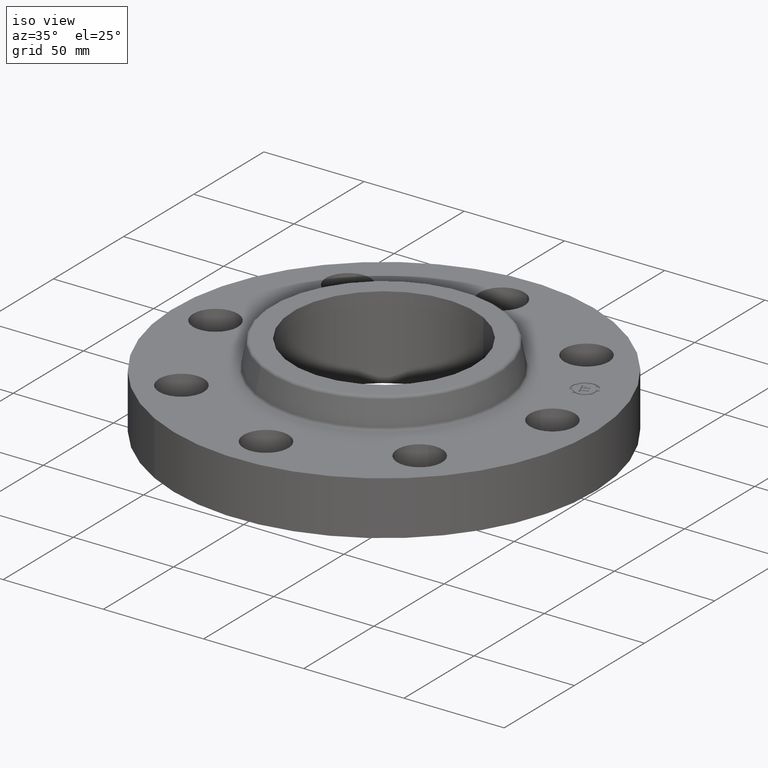
[diagram: clean part render]
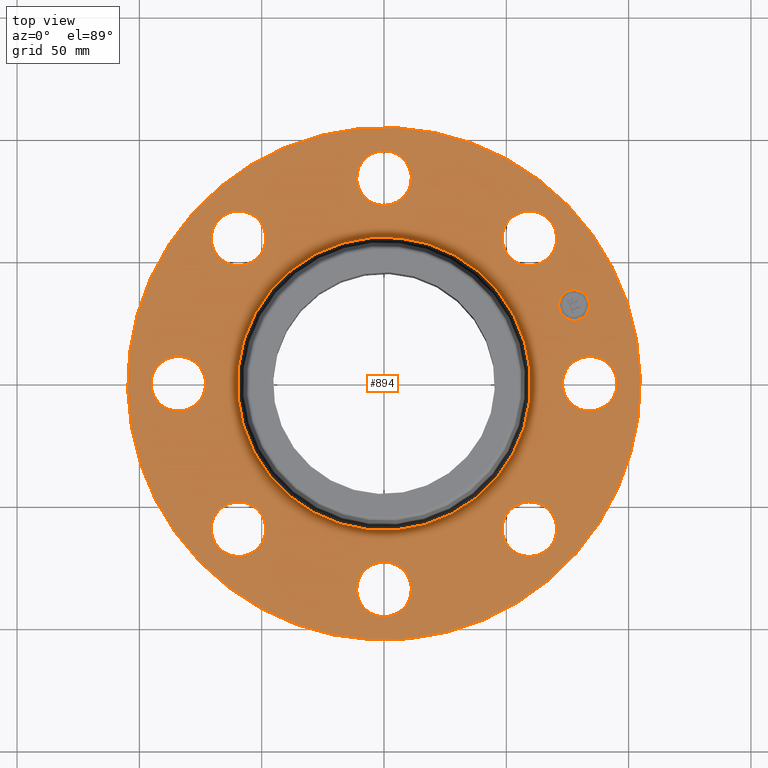
[diagram: tour spotlight — one face highlighted and labeled with its STEP entity id]
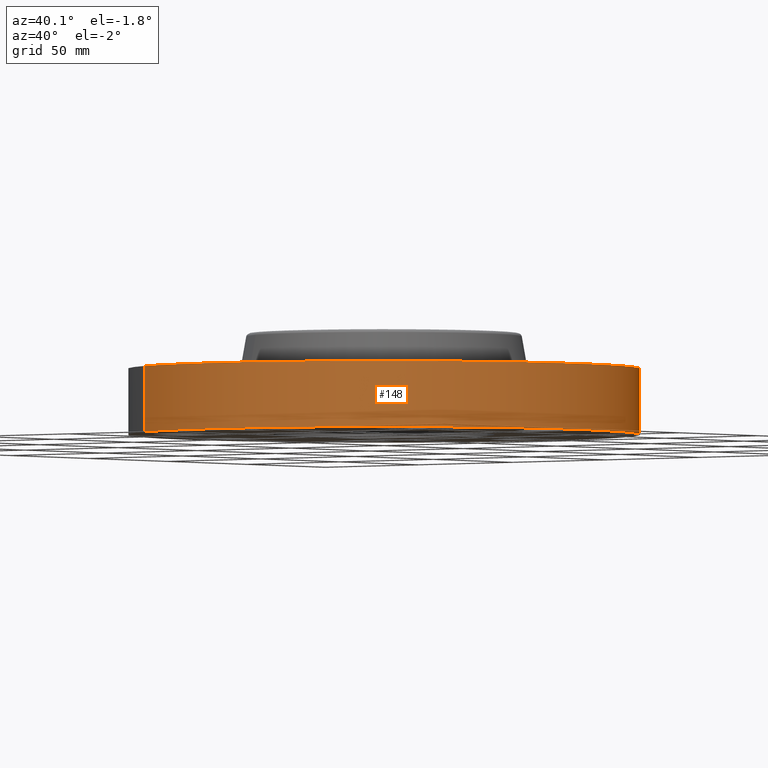
[diagram: tour spotlight — one face highlighted and labeled with its STEP entity id]
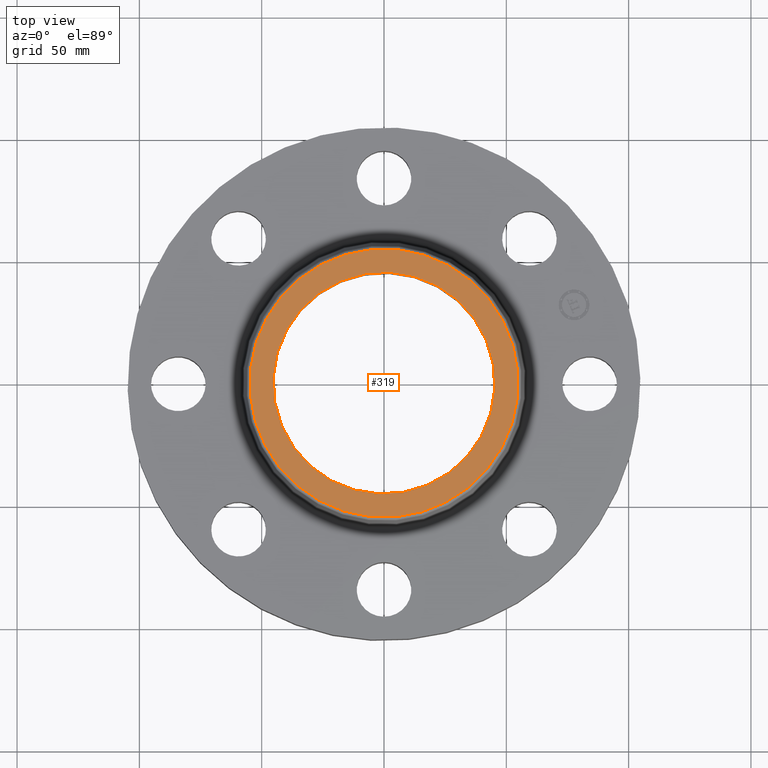
[diagram: tour spotlight — one face highlighted and labeled with its STEP entity id]
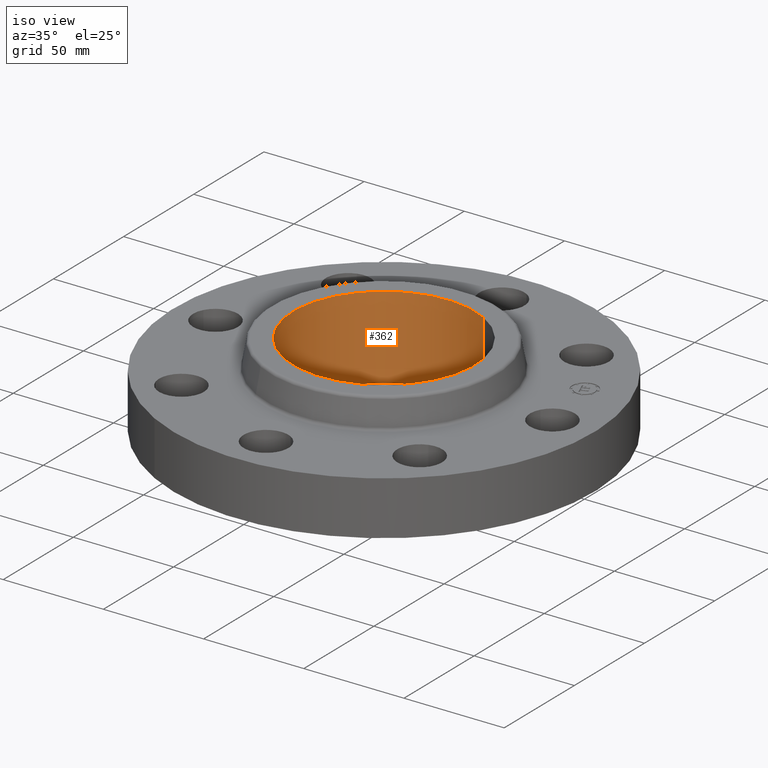
[diagram: tour spotlight — one face highlighted and labeled with its STEP entity id]
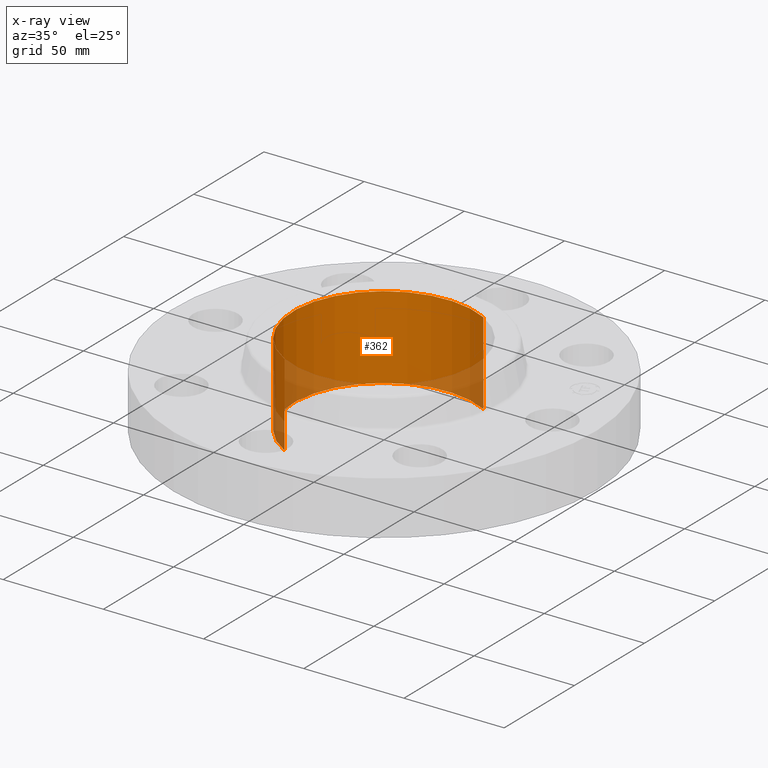
[diagram: x-ray of the same camera — body ghosted, this tour face saturated]
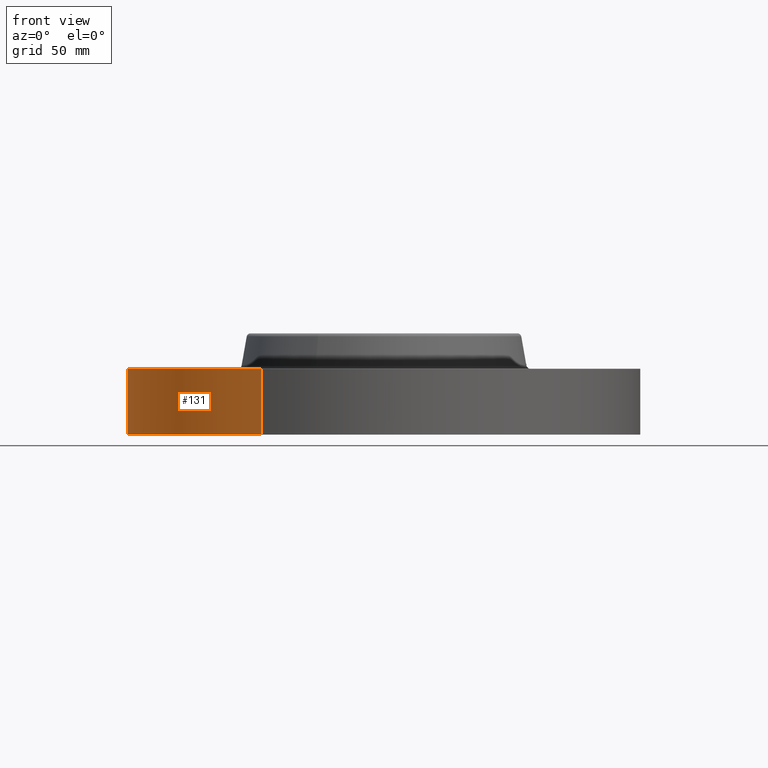
[diagram: tour spotlight — one face highlighted and labeled with its STEP entity id]
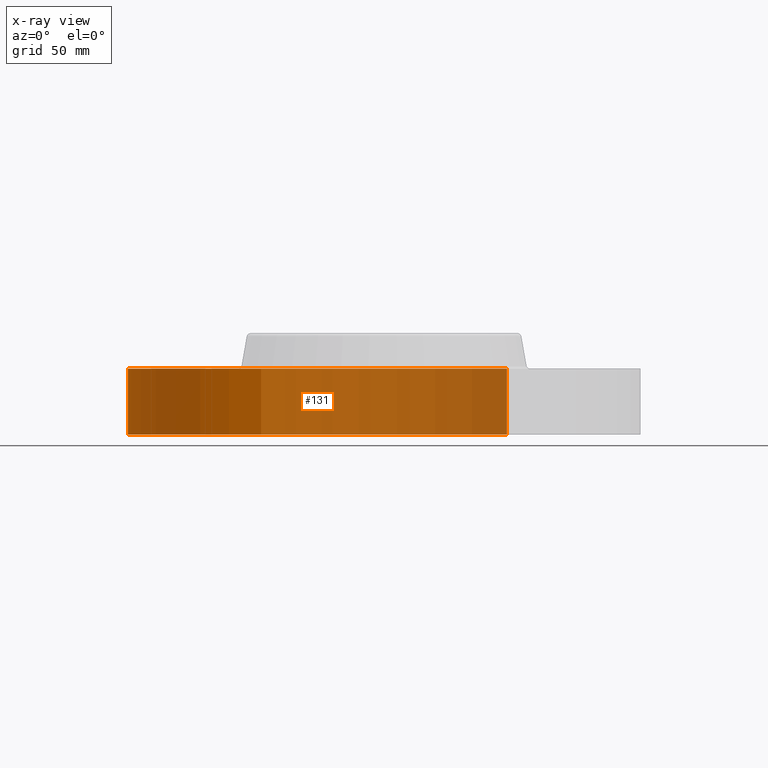
[diagram: x-ray of the same camera — body ghosted, this tour face saturated]
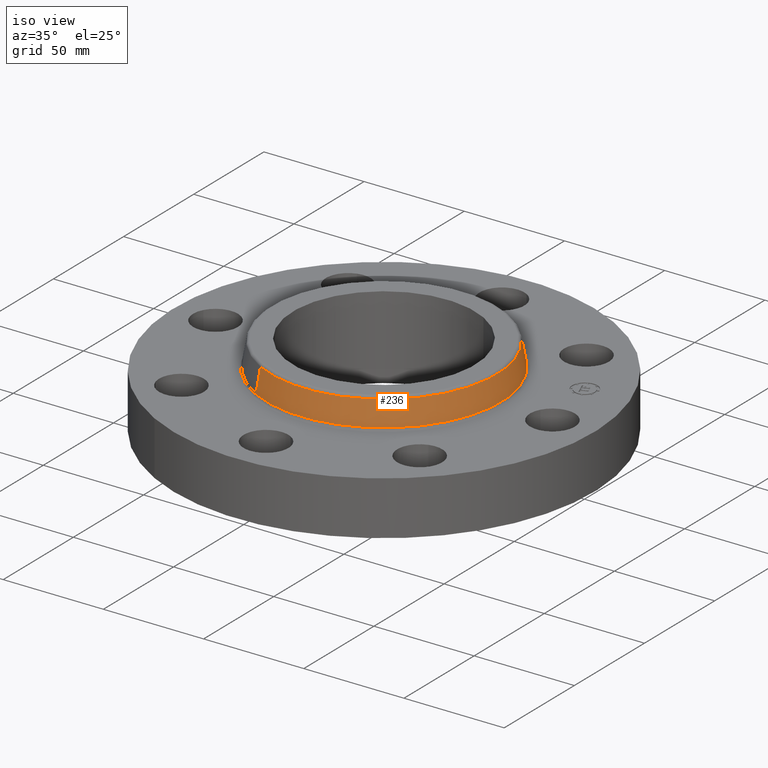
[diagram: tour spotlight — one face highlighted and labeled with its STEP entity id]
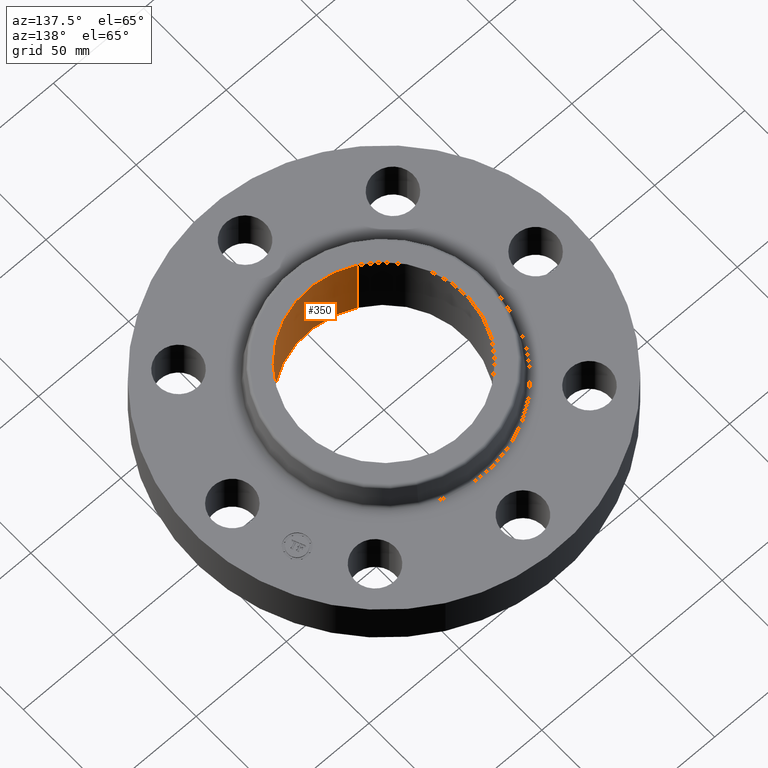
[diagram: tour spotlight — one face highlighted and labeled with its STEP entity id]
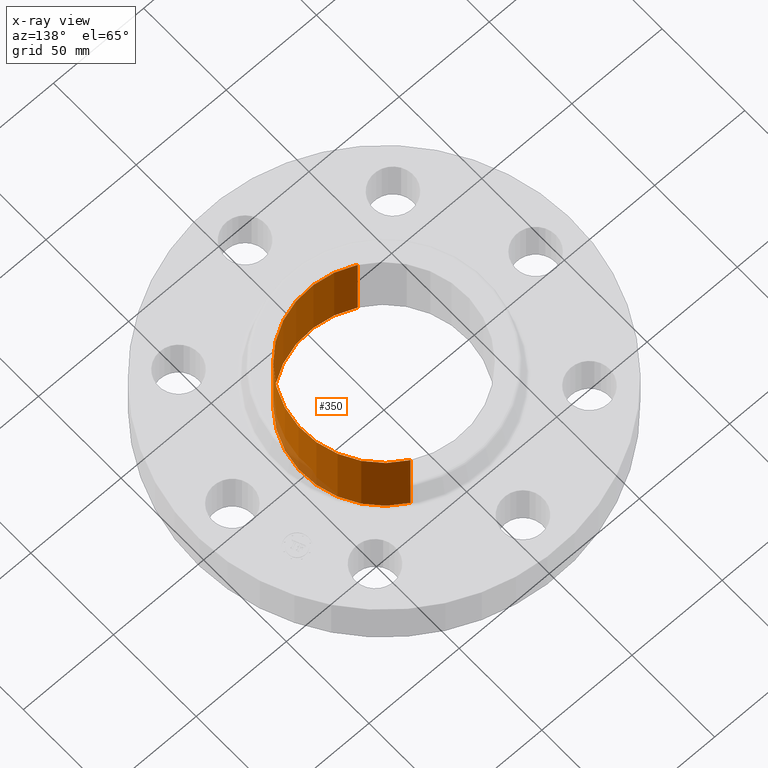
[diagram: x-ray of the same camera — body ghosted, this tour face saturated]
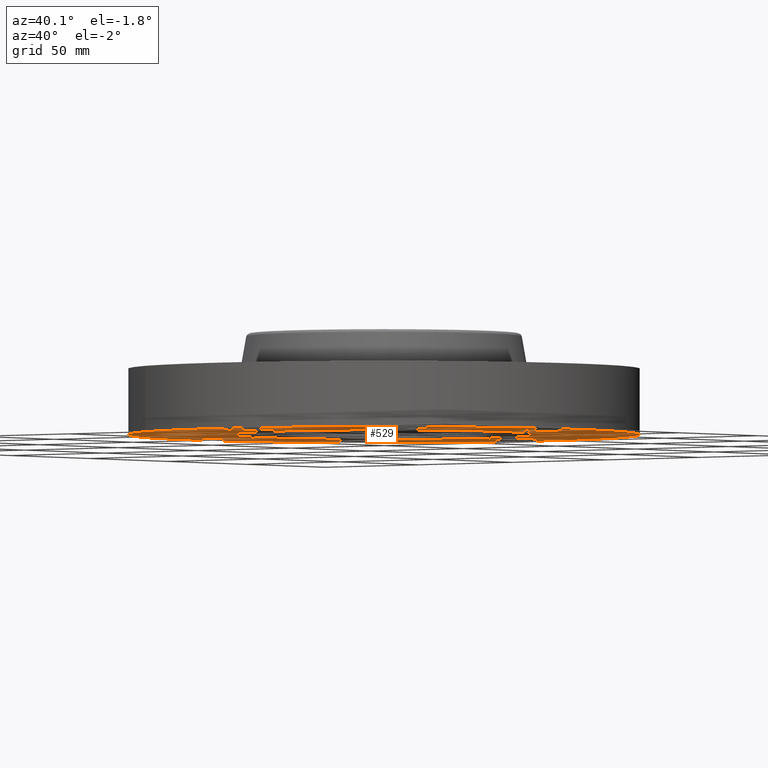
[diagram: tour spotlight — one face highlighted and labeled with its STEP entity id]
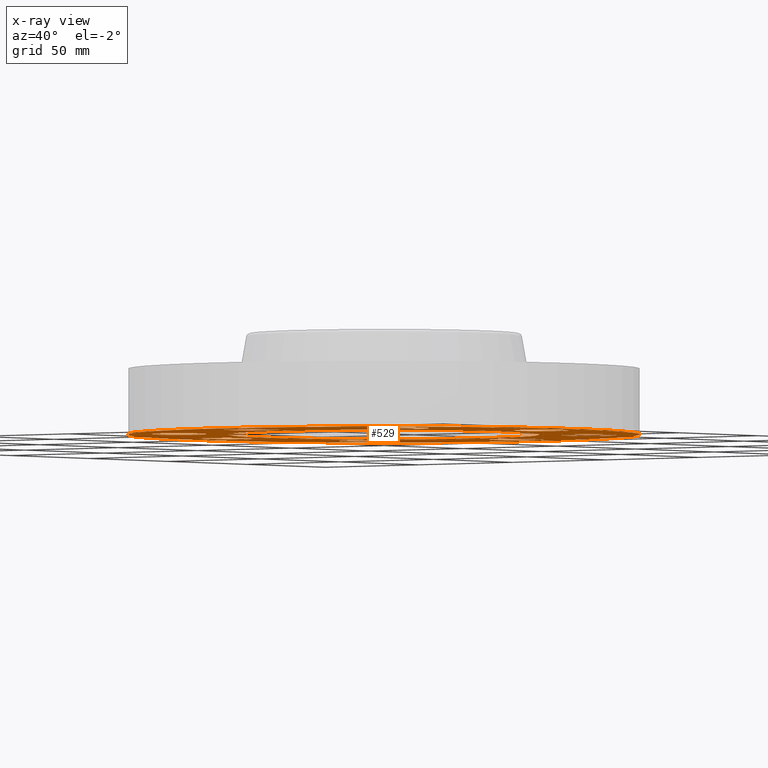
[diagram: x-ray of the same camera — body ghosted, this tour face saturated]
A machine part: a face-by-face anatomy tour. The part has 415 B-rep faces; the first image is the clean iso view, then the 8 largest visible faces are spotlighted one at a time (largest first), each with its STEP entity span.

Face 1 — top view, entity #894. In plain terms, the highlighted planar face has unit normal (0, 0, -1).
Definition (entity closure, byte-faithful):
#65=AXIS2_PLACEMENT_3D('Circle Axis2P3D',#63,#64,$) ;
#82=AXIS2_PLACEMENT_3D('Circle Axis2P3D',#80,#81,$) ;
#115=AXIS2_PLACEMENT_3D('Circle Axis2P3D',#113,#114,$) ;
#139=AXIS2_PLACEMENT_3D('Circle Axis2P3D',#137,#138,$) ;
#156=AXIS2_PLACEMENT_3D('Circle Axis2P3D',#154,#155,$) ;
#191=AXIS2_PLACEMENT_3D('Circle Axis2P3D',#189,#190,$) ;
#551=AXIS2_PLACEMENT_3D('Circle Axis2P3D',#549,#550,$) ;
#563=AXIS2_PLACEMENT_3D('Circle Axis2P3D',#561,#562,$) ;
#594=AXIS2_PLACEMENT_3D('Circle Axis2P3D',#592,#593,$) ;
#606=AXIS2_PLACEMENT_3D('Circle Axis2P3D',#604,#605,$) ;
#637=AXIS2_PLACEMENT_3D('Circle Axis2P3D',#635,#636,$) ;
#649=AXIS2_PLACEMENT_3D('Circle Axis2P3D',#647,#648,$) ;
#680=AXIS2_PLACEMENT_3D('Circle Axis2P3D',#678,#679,$) ;
#692=AXIS2_PLACEMENT_3D('Circle Axis2P3D',#690,#691,$) ;
#723=AXIS2_PLACEMENT_3D('Circle Axis2P3D',#721,#722,$) ;
#735=AXIS2_PLACEMENT_3D('Circle Axis2P3D',#733,#734,$) ;
#766=AXIS2_PLACEMENT_3D('Circle Axis2P3D',#764,#765,$) ;
#778=AXIS2_PLACEMENT_3D('Circle Axis2P3D',#776,#777,$) ;
#809=AXIS2_PLACEMENT_3D('Circle Axis2P3D',#807,#808,$) ;
#821=AXIS2_PLACEMENT_3D('Circle Axis2P3D',#819,#820,$) ;
#834=AXIS2_PLACEMENT_3D('Plane Axis2P3D',#831,#832,#833) ;
#878=AXIS2_PLACEMENT_3D('Circle Axis2P3D',#876,#877,$) ;
#887=AXIS2_PLACEMENT_3D('Circle Axis2P3D',#885,#886,$) ;
#46=CARTESIAN_POINT('Vertex',(2.92386367278,0.210947236987,1.06)) ;
#60=CARTESIAN_POINT('Vertex',(3.69613632725,-0.210947236987,1.06)) ;
#63=CARTESIAN_POINT('Axis2P3D Location',(3.31000000001,0.,1.06)) ;
#80=CARTESIAN_POINT('Axis2P3D Location',(3.31000000001,0.,1.06)) ;
#110=CARTESIAN_POINT('Vertex',(-1.97763034675,-3.62002806781,1.06)) ;
#113=CARTESIAN_POINT('Axis2P3D Location',(0.,0.,1.06)) ;
#117=CARTESIAN_POINT('Vertex',(1.97763034675,3.62002806781,1.06)) ;
#137=CARTESIAN_POINT('Axis2P3D Location',(0.,0.,1.06)) ;
#154=CARTESIAN_POINT('Axis2P3D Location',(0.,0.,1.06)) ;
#158=CARTESIAN_POINT('Vertex',(1.13161014174,2.07139847022,1.06)) ;
#160=CARTESIAN_POINT('Vertex',(-1.13161014174,-2.07139847022,1.06)) ;
#189=CARTESIAN_POINT('Axis2P3D Location',(0.,0.,1.06)) ;
#539=CARTESIAN_POINT('Vertex',(-2.21664605203,1.91832160854,1.06)) ;
#546=CARTESIAN_POINT('Vertex',(-2.46440083944,2.76272528293,1.06)) ;
#549=CARTESIAN_POINT('Axis2P3D Location',(-2.34052344574,2.34052344574,1.06)) ;
#561=CARTESIAN_POINT('Axis2P3D Location',(-2.34052344574,2.34052344574,1.06)) ;
#582=CARTESIAN_POINT('Vertex',(0.210947236987,-2.92386367278,1.06)) ;
#589=CARTESIAN_POINT('Vertex',(-0.210947236987,-3.69613632725,1.06)) ;
#592=CARTESIAN_POINT('Axis2P3D Location',(-3.56803423843E-016,-3.31000000001,1.06)) ;
#604=CARTESIAN_POINT('Axis2P3D Location',(-3.56803423843E-016,-3.31000000001,1.06)) ;
#625=CARTESIAN_POINT('Vertex',(-0.210947236987,2.92386367278,1.06)) ;
#632=CARTESIAN_POINT('Vertex',(0.210947236987,3.69613632725,1.06)) ;
#635=CARTESIAN_POINT('Axis2P3D Location',(-6.08037135779E-016,3.31000000001,1.06)) ;
#647=CARTESIAN_POINT('Axis2P3D Location',(-6.08037135779E-016,3.31000000001,1.06)) ;
#668=CARTESIAN_POINT('Vertex',(-1.91832160854,-2.21664605203,1.06)) ;
#675=CARTESIAN_POINT('Vertex',(-2.76272528293,-2.46440083944,1.06)) ;
#678=CARTESIAN_POINT('Axis2P3D Location',(-2.34052344574,-2.34052344574,1.06)) ;
#690=CARTESIAN_POINT('Axis2P3D Location',(-2.34052344574,-2.34052344574,1.06)) ;
#711=CARTESIAN_POINT('Vertex',(1.91832160854,2.21664605203,1.06)) ;
#718=CARTESIAN_POINT('Vertex',(2.76272528293,2.46440083944,1.06)) ;
#721=CARTESIAN_POINT('Axis2P3D Location',(2.34052344574,2.34052344574,1.06)) ;
#733=CARTESIAN_POINT('Axis2P3D Location',(2.34052344574,2.34052344574,1.06)) ;
#754=CARTESIAN_POINT('Vertex',(-2.92386367278,-0.210947236987,1.06)) ;
#761=CARTESIAN_POINT('Vertex',(-3.69613632725,0.210947236987,1.06)) ;
#764=CARTESIAN_POINT('Axis2P3D Location',(-3.31000000001,-4.05358090519E-016,1.06)) ;
#776=CARTESIAN_POINT('Axis2P3D Location',(-3.31000000001,-4.05358090519E-016,1.06)) ;
#797=CARTESIAN_POINT('Vertex',(2.21664605203,-1.91832160854,1.06)) ;
#804=CARTESIAN_POINT('Vertex',(2.46440083944,-2.76272528293,1.06)) ;
#807=CARTESIAN_POINT('Axis2P3D Location',(2.34052344574,-2.34052344574,1.06)) ;
#819=CARTESIAN_POINT('Axis2P3D Location',(2.34052344574,-2.34052344574,1.06)) ;
#831=CARTESIAN_POINT('Axis2P3D Location',(0.,4.12500000002,1.06)) ;
#876=CARTESIAN_POINT('Axis2P3D Location',(3.05804125262,1.26668216113,1.06)) ;
#880=CARTESIAN_POINT('Vertex',(2.96332710311,1.49534234543,1.06)) ;
#882=CARTESIAN_POINT('Vertex',(3.15275540214,1.03802197684,1.06)) ;
#885=CARTESIAN_POINT('Axis2P3D Location',(3.05804125262,1.26668216113,1.06)) ;
#64=DIRECTION('Axis2P3D Direction',(0.,-0.,-0.0393700787402)) ;
#81=DIRECTION('Axis2P3D Direction',(0.,-0.,-0.0393700787402)) ;
#114=DIRECTION('Axis2P3D Direction',(0.,0.,-0.0393700787402)) ;
#138=DIRECTION('Axis2P3D Direction',(0.,0.,-0.0393700787402)) ;
#155=DIRECTION('Axis2P3D Direction',(0.,0.,-0.0393700787402)) ;
#190=DIRECTION('Axis2P3D Direction',(0.,0.,-0.0393700787402)) ;
#550=DIRECTION('Axis2P3D Direction',(0.,0.,-0.0393700787402)) ;
#562=DIRECTION('Axis2P3D Direction',(0.,0.,-0.0393700787402)) ;
#593=DIRECTION('Axis2P3D Direction',(0.,-0.,-0.0393700787402)) ;
#605=DIRECTION('Axis2P3D Direction',(0.,-0.,-0.0393700787402)) ;
#636=DIRECTION('Axis2P3D Direction',(0.,0.,-0.0393700787402)) ;
#648=DIRECTION('Axis2P3D Direction',(0.,0.,-0.0393700787402)) ;
#679=DIRECTION('Axis2P3D Direction',(-0.,0.,-0.0393700787402)) ;
#691=DIRECTION('Axis2P3D Direction',(-0.,0.,-0.0393700787402)) ;
#722=DIRECTION('Axis2P3D Direction',(0.,0.,-0.0393700787402)) ;
#734=DIRECTION('Axis2P3D Direction',(0.,0.,-0.0393700787402)) ;
#765=DIRECTION('Axis2P3D Direction',(-0.,0.,-0.0393700787402)) ;
#777=DIRECTION('Axis2P3D Direction',(-0.,0.,-0.0393700787402)) ;
#808=DIRECTION('Axis2P3D Direction',(0.,-0.,-0.0393700787402)) ;
#820=DIRECTION('Axis2P3D Direction',(0.,-0.,-0.0393700787402)) ;
#832=DIRECTION('Axis2P3D Direction',(0.,0.,-0.0393700787402)) ;
#833=DIRECTION('Axis2P3D XDirection',(0.0393700787402,0.,0.)) ;
#877=DIRECTION('Axis2P3D Direction',(0.,0.,-0.0393700787402)) ;
#886=DIRECTION('Axis2P3D Direction',(0.,0.,-0.0393700787402)) ;
#837=ORIENTED_EDGE('',*,*,#141,.F.) ;
#838=ORIENTED_EDGE('',*,*,#119,.F.) ;
#841=ORIENTED_EDGE('',*,*,#67,.T.) ;
#842=ORIENTED_EDGE('',*,*,#84,.T.) ;
#845=ORIENTED_EDGE('',*,*,#193,.T.) ;
#846=ORIENTED_EDGE('',*,*,#162,.T.) ;
#849=ORIENTED_EDGE('',*,*,#823,.T.) ;
#850=ORIENTED_EDGE('',*,*,#811,.T.) ;
#853=ORIENTED_EDGE('',*,*,#608,.T.) ;
#854=ORIENTED_EDGE('',*,*,#596,.T.) ;
#857=ORIENTED_EDGE('',*,*,#694,.T.) ;
#858=ORIENTED_EDGE('',*,*,#682,.T.) ;
#861=ORIENTED_EDGE('',*,*,#780,.T.) ;
#862=ORIENTED_EDGE('',*,*,#768,.T.) ;
#865=ORIENTED_EDGE('',*,*,#565,.T.) ;
#866=ORIENTED_EDGE('',*,*,#553,.T.) ;
#869=ORIENTED_EDGE('',*,*,#651,.T.) ;
#870=ORIENTED_EDGE('',*,*,#639,.T.) ;
#873=ORIENTED_EDGE('',*,*,#737,.T.) ;
#874=ORIENTED_EDGE('',*,*,#725,.T.) ;
#891=ORIENTED_EDGE('',*,*,#884,.T.) ;
#892=ORIENTED_EDGE('',*,*,#889,.T.) ;
#843=FACE_BOUND('',#840,.T.) ;
#847=FACE_BOUND('',#844,.T.) ;
#851=FACE_BOUND('',#848,.T.) ;
#855=FACE_BOUND('',#852,.T.) ;
#859=FACE_BOUND('',#856,.T.) ;
#863=FACE_BOUND('',#860,.T.) ;
#867=FACE_BOUND('',#864,.T.) ;
#871=FACE_BOUND('',#868,.T.) ;
#875=FACE_BOUND('',#872,.T.) ;
#893=FACE_BOUND('',#890,.T.) ;
#894=ADVANCED_FACE('PartBody',(#839,#843,#847,#851,#855,#859,#863,#867,#871,#875,#893),#835,.F.) ;
#66=CIRCLE('generated circle',#65,0.440000000002) ;
#83=CIRCLE('generated circle',#82,0.440000000002) ;
#116=CIRCLE('generated circle',#115,4.12500000002) ;
#140=CIRCLE('generated circle',#139,4.12500000002) ;
#157=CIRCLE('generated circle',#156,2.36034597788) ;
#192=CIRCLE('generated circle',#191,2.36034597788) ;
#552=CIRCLE('generated circle',#551,0.440000000002) ;
#564=CIRCLE('generated circle',#563,0.440000000002) ;
#595=CIRCLE('generated circle',#594,0.440000000002) ;
#607=CIRCLE('generated circle',#606,0.440000000002) ;
#638=CIRCLE('generated circle',#637,0.440000000002) ;
#650=CIRCLE('generated circle',#649,0.440000000002) ;
#681=CIRCLE('generated circle',#680,0.440000000002) ;
#693=CIRCLE('generated circle',#692,0.440000000002) ;
#724=CIRCLE('generated circle',#723,0.440000000002) ;
#736=CIRCLE('generated circle',#735,0.440000000002) ;
#767=CIRCLE('generated circle',#766,0.440000000002) ;
#779=CIRCLE('generated circle',#778,0.440000000002) ;
#810=CIRCLE('generated circle',#809,0.440000000002) ;
#822=CIRCLE('generated circle',#821,0.440000000002) ;
#879=CIRCLE('generated circle',#878,0.247500000001) ;
#888=CIRCLE('generated circle',#887,0.247500000001) ;
#67=EDGE_CURVE('',#47,#61,#66,.T.) ;
#84=EDGE_CURVE('',#61,#47,#83,.T.) ;
#119=EDGE_CURVE('',#111,#118,#116,.T.) ;
#141=EDGE_CURVE('',#118,#111,#140,.T.) ;
#162=EDGE_CURVE('',#159,#161,#157,.T.) ;
#193=EDGE_CURVE('',#161,#159,#192,.T.) ;
#553=EDGE_CURVE('',#540,#547,#552,.T.) ;
#565=EDGE_CURVE('',#547,#540,#564,.T.) ;
#596=EDGE_CURVE('',#583,#590,#595,.T.) ;
#608=EDGE_CURVE('',#590,#583,#607,.T.) ;
#639=EDGE_CURVE('',#626,#633,#638,.T.) ;
#651=EDGE_CURVE('',#633,#626,#650,.T.) ;
#682=EDGE_CURVE('',#669,#676,#681,.T.) ;
#694=EDGE_CURVE('',#676,#669,#693,.T.) ;
#725=EDGE_CURVE('',#712,#719,#724,.T.) ;
#737=EDGE_CURVE('',#719,#712,#736,.T.) ;
#768=EDGE_CURVE('',#755,#762,#767,.T.) ;
#780=EDGE_CURVE('',#762,#755,#779,.T.) ;
#811=EDGE_CURVE('',#798,#805,#810,.T.) ;
#823=EDGE_CURVE('',#805,#798,#822,.T.) ;
#884=EDGE_CURVE('',#881,#883,#879,.T.) ;
#889=EDGE_CURVE('',#883,#881,#888,.T.) ;
#836=EDGE_LOOP('',(#837,#838)) ;
#840=EDGE_LOOP('',(#841,#842)) ;
#844=EDGE_LOOP('',(#845,#846)) ;
#848=EDGE_LOOP('',(#849,#850)) ;
#852=EDGE_LOOP('',(#853,#854)) ;
#856=EDGE_LOOP('',(#857,#858)) ;
#860=EDGE_LOOP('',(#861,#862)) ;
#864=EDGE_LOOP('',(#865,#866)) ;
#868=EDGE_LOOP('',(#869,#870)) ;
#872=EDGE_LOOP('',(#873,#874)) ;
#890=EDGE_LOOP('',(#891,#892)) ;
#839=FACE_OUTER_BOUND('',#836,.T.) ;
#835=PLANE('',#834) ;
#47=VERTEX_POINT('',#46) ;
#61=VERTEX_POINT('',#60) ;
#111=VERTEX_POINT('',#110) ;
#118=VERTEX_POINT('',#117) ;
#159=VERTEX_POINT('',#158) ;
#161=VERTEX_POINT('',#160) ;
#540=VERTEX_POINT('',#539) ;
#547=VERTEX_POINT('',#546) ;
#583=VERTEX_POINT('',#582) ;
#590=VERTEX_POINT('',#589) ;
#626=VERTEX_POINT('',#625) ;
#633=VERTEX_POINT('',#632) ;
#669=VERTEX_POINT('',#668) ;
#676=VERTEX_POINT('',#675) ;
#712=VERTEX_POINT('',#711) ;
#719=VERTEX_POINT('',#718) ;
#755=VERTEX_POINT('',#754) ;
#762=VERTEX_POINT('',#761) ;
#798=VERTEX_POINT('',#797) ;
#805=VERTEX_POINT('',#804) ;
#881=VERTEX_POINT('',#880) ;
#883=VERTEX_POINT('',#882) ;

Face 2 — auxiliary view, entity #148. In plain terms, the highlighted cylindrical surface (partial cylindrical patch) has radius 104.775 mm, axis along (0, 0, -1).
Definition (entity closure, byte-faithful):
#95=AXIS2_PLACEMENT_3D('Cylinder Axis2P3D',#92,#93,#94) ;
#134=AXIS2_PLACEMENT_3D('Circle Axis2P3D',#132,#133,$) ;
#139=AXIS2_PLACEMENT_3D('Circle Axis2P3D',#137,#138,$) ;
#92=CARTESIAN_POINT('Axis2P3D Location',(0.,0.,0.815000000003)) ;
#101=CARTESIAN_POINT('Vertex',(-1.97763034675,-3.62002806781,2.79741234551E-016)) ;
#103=CARTESIAN_POINT('Vertex',(1.97763034675,3.62002806781,2.79741234551E-016)) ;
#106=CARTESIAN_POINT('Line Origine',(-1.97763034675,-3.62002806781,0.530000000002)) ;
#110=CARTESIAN_POINT('Vertex',(-1.97763034675,-3.62002806781,1.06)) ;
#117=CARTESIAN_POINT('Vertex',(1.97763034675,3.62002806781,1.06)) ;
#120=CARTESIAN_POINT('Line Origine',(1.97763034675,3.62002806781,0.530000000002)) ;
#132=CARTESIAN_POINT('Axis2P3D Location',(0.,0.,4.19611851827E-016)) ;
#137=CARTESIAN_POINT('Axis2P3D Location',(0.,0.,1.06)) ;
#93=DIRECTION('Axis2P3D Direction',(0.,0.,-0.0393700787402)) ;
#94=DIRECTION('Axis2P3D XDirection',(0.0188750212049,0.0345504945626,0.)) ;
#107=DIRECTION('Vector Direction',(0.,0.,-0.0393700787402)) ;
#121=DIRECTION('Vector Direction',(0.,0.,-0.0393700787402)) ;
#133=DIRECTION('Axis2P3D Direction',(0.,0.,-0.0393700787402)) ;
#138=DIRECTION('Axis2P3D Direction',(0.,0.,-0.0393700787402)) ;
#108=VECTOR('Line Direction',#107,0.0393700787402) ;
#122=VECTOR('Line Direction',#121,0.0393700787402) ;
#143=ORIENTED_EDGE('',*,*,#136,.F.) ;
#144=ORIENTED_EDGE('',*,*,#124,.T.) ;
#145=ORIENTED_EDGE('',*,*,#141,.T.) ;
#146=ORIENTED_EDGE('',*,*,#112,.F.) ;
#148=ADVANCED_FACE('PartBody',(#147),#96,.T.) ;
#135=CIRCLE('generated circle',#134,4.12500000002) ;
#140=CIRCLE('generated circle',#139,4.12500000002) ;
#96=CYLINDRICAL_SURFACE('generated cylinder',#95,4.12500000002) ;
#112=EDGE_CURVE('',#102,#111,#109,.F.) ;
#124=EDGE_CURVE('',#104,#118,#123,.F.) ;
#136=EDGE_CURVE('',#104,#102,#135,.T.) ;
#141=EDGE_CURVE('',#118,#111,#140,.T.) ;
#142=EDGE_LOOP('',(#143,#144,#145,#146)) ;
#147=FACE_OUTER_BOUND('',#142,.T.) ;
#109=LINE('Line',#106,#108) ;
#123=LINE('Line',#120,#122) ;
#102=VERTEX_POINT('',#101) ;
#104=VERTEX_POINT('',#103) ;
#111=VERTEX_POINT('',#110) ;
#118=VERTEX_POINT('',#117) ;

Face 3 — top view, entity #319. In plain terms, the highlighted planar face has unit normal (0, 0, -1).
Definition (entity closure, byte-faithful):
#263=AXIS2_PLACEMENT_3D('Circle Axis2P3D',#261,#262,$) ;
#282=AXIS2_PLACEMENT_3D('Circle Axis2P3D',#280,#281,$) ;
#295=AXIS2_PLACEMENT_3D('Plane Axis2P3D',#292,#293,#294) ;
#303=AXIS2_PLACEMENT_3D('Circle Axis2P3D',#301,#302,$) ;
#312=AXIS2_PLACEMENT_3D('Circle Axis2P3D',#310,#311,$) ;
#258=CARTESIAN_POINT('Vertex',(1.03515052174,1.89483032016,1.63000000001)) ;
#261=CARTESIAN_POINT('Axis2P3D Location',(0.,0.,1.63000000001)) ;
#265=CARTESIAN_POINT('Vertex',(-1.03515052174,-1.89483032016,1.63000000001)) ;
#280=CARTESIAN_POINT('Axis2P3D Location',(0.,0.,1.63000000001)) ;
#292=CARTESIAN_POINT('Axis2P3D Location',(0.,2.15914764313,1.63000000001)) ;
#301=CARTESIAN_POINT('Axis2P3D Location',(0.,0.,1.63000000001)) ;
#305=CARTESIAN_POINT('Vertex',(-0.855774586412,-1.56648487298,1.63000000001)) ;
#307=CARTESIAN_POINT('Vertex',(0.855774586412,1.56648487298,1.63000000001)) ;
#310=CARTESIAN_POINT('Axis2P3D Location',(0.,0.,1.63000000001)) ;
#262=DIRECTION('Axis2P3D Direction',(0.,0.,-0.0393700787402)) ;
#281=DIRECTION('Axis2P3D Direction',(0.,0.,-0.0393700787402)) ;
#293=DIRECTION('Axis2P3D Direction',(0.,0.,-0.0393700787402)) ;
#294=DIRECTION('Axis2P3D XDirection',(0.0393700787402,0.,0.)) ;
#302=DIRECTION('Axis2P3D Direction',(0.,0.,-0.0393700787402)) ;
#311=DIRECTION('Axis2P3D Direction',(0.,0.,-0.0393700787402)) ;
#298=ORIENTED_EDGE('',*,*,#267,.F.) ;
#299=ORIENTED_EDGE('',*,*,#284,.F.) ;
#316=ORIENTED_EDGE('',*,*,#309,.T.) ;
#317=ORIENTED_EDGE('',*,*,#314,.T.) ;
#318=FACE_BOUND('',#315,.T.) ;
#319=ADVANCED_FACE('PartBody',(#300,#318),#296,.F.) ;
#264=CIRCLE('generated circle',#263,2.15914764313) ;
#283=CIRCLE('generated circle',#282,2.15914764313) ;
#304=CIRCLE('generated circle',#303,1.78500000001) ;
#313=CIRCLE('generated circle',#312,1.78500000001) ;
#267=EDGE_CURVE('',#259,#266,#264,.T.) ;
#284=EDGE_CURVE('',#266,#259,#283,.T.) ;
#309=EDGE_CURVE('',#306,#308,#304,.T.) ;
#314=EDGE_CURVE('',#308,#306,#313,.T.) ;
#297=EDGE_LOOP('',(#298,#299)) ;
#315=EDGE_LOOP('',(#316,#317)) ;
#300=FACE_OUTER_BOUND('',#297,.T.) ;
#296=PLANE('',#295) ;
#259=VERTEX_POINT('',#258) ;
#266=VERTEX_POINT('',#265) ;
#306=VERTEX_POINT('',#305) ;
#308=VERTEX_POINT('',#307) ;

Face 4 — iso view, entity #362. An x-ray twin of the same camera follows (body ghosted, this face saturated) — the face is partly hidden behind the body. In plain terms, the highlighted cylindrical surface (partial cylindrical patch) has radius 45.339 mm, axis along (0, 0, -1).
Definition (entity closure, byte-faithful):
#303=AXIS2_PLACEMENT_3D('Circle Axis2P3D',#301,#302,$) ;
#323=AXIS2_PLACEMENT_3D('Cylinder Axis2P3D',#320,#321,#322) ;
#353=AXIS2_PLACEMENT_3D('Circle Axis2P3D',#351,#352,$) ;
#301=CARTESIAN_POINT('Axis2P3D Location',(0.,0.,1.63000000001)) ;
#305=CARTESIAN_POINT('Vertex',(-0.855774586412,-1.56648487298,1.63000000001)) ;
#307=CARTESIAN_POINT('Vertex',(0.855774586412,1.56648487298,1.63000000001)) ;
#320=CARTESIAN_POINT('Axis2P3D Location',(0.,0.,0.815000000003)) ;
#325=CARTESIAN_POINT('Line Origine',(0.855774586412,1.56648487298,0.815000000003)) ;
#329=CARTESIAN_POINT('Vertex',(0.855774586412,1.56648487298,-7.27327209833E-015)) ;
#336=CARTESIAN_POINT('Vertex',(-0.855774586412,-1.56648487298,-7.27327209833E-015)) ;
#339=CARTESIAN_POINT('Line Origine',(-0.855774586412,-1.56648487298,0.815000000003)) ;
#351=CARTESIAN_POINT('Axis2P3D Location',(0.,0.,-7.27327209833E-015)) ;
#302=DIRECTION('Axis2P3D Direction',(0.,0.,-0.0393700787402)) ;
#321=DIRECTION('Axis2P3D Direction',(0.,0.,-0.0393700787402)) ;
#322=DIRECTION('Axis2P3D XDirection',(-0.0188750212049,-0.0345504945626,0.)) ;
#326=DIRECTION('Vector Direction',(0.,0.,-0.0393700787402)) ;
#340=DIRECTION('Vector Direction',(0.,0.,-0.0393700787402)) ;
#352=DIRECTION('Axis2P3D Direction',(0.,0.,-0.0393700787402)) ;
#327=VECTOR('Line Direction',#326,0.0393700787402) ;
#341=VECTOR('Line Direction',#340,0.0393700787402) ;
#357=ORIENTED_EDGE('',*,*,#309,.F.) ;
#358=ORIENTED_EDGE('',*,*,#343,.T.) ;
#359=ORIENTED_EDGE('',*,*,#355,.T.) ;
#360=ORIENTED_EDGE('',*,*,#331,.F.) ;
#362=ADVANCED_FACE('PartBody',(#361),#324,.F.) ;
#304=CIRCLE('generated circle',#303,1.78500000001) ;
#354=CIRCLE('generated circle',#353,1.78500000001) ;
#324=CYLINDRICAL_SURFACE('generated cylinder',#323,1.78500000001) ;
#309=EDGE_CURVE('',#306,#308,#304,.T.) ;
#331=EDGE_CURVE('',#308,#330,#328,.T.) ;
#343=EDGE_CURVE('',#306,#337,#342,.T.) ;
#355=EDGE_CURVE('',#337,#330,#354,.T.) ;
#356=EDGE_LOOP('',(#357,#358,#359,#360)) ;
#361=FACE_OUTER_BOUND('',#356,.T.) ;
#328=LINE('Line',#325,#327) ;
#342=LINE('Line',#339,#341) ;
#306=VERTEX_POINT('',#305) ;
#308=VERTEX_POINT('',#307) ;
#330=VERTEX_POINT('',#329) ;
#337=VERTEX_POINT('',#336) ;

Face 5 — front view, entity #131. An x-ray twin of the same camera follows (body ghosted, this face saturated) — the face is partly hidden behind the body. In plain terms, the highlighted cylindrical surface (partial cylindrical patch) has radius 104.775 mm, axis along (0, 0, -1).
Definition (entity closure, byte-faithful):
#95=AXIS2_PLACEMENT_3D('Cylinder Axis2P3D',#92,#93,#94) ;
#99=AXIS2_PLACEMENT_3D('Circle Axis2P3D',#97,#98,$) ;
#115=AXIS2_PLACEMENT_3D('Circle Axis2P3D',#113,#114,$) ;
#92=CARTESIAN_POINT('Axis2P3D Location',(0.,0.,0.815000000003)) ;
#97=CARTESIAN_POINT('Axis2P3D Location',(0.,0.,4.19611851827E-016)) ;
#101=CARTESIAN_POINT('Vertex',(-1.97763034675,-3.62002806781,2.79741234551E-016)) ;
#103=CARTESIAN_POINT('Vertex',(1.97763034675,3.62002806781,2.79741234551E-016)) ;
#106=CARTESIAN_POINT('Line Origine',(-1.97763034675,-3.62002806781,0.530000000002)) ;
#110=CARTESIAN_POINT('Vertex',(-1.97763034675,-3.62002806781,1.06)) ;
#113=CARTESIAN_POINT('Axis2P3D Location',(0.,0.,1.06)) ;
#117=CARTESIAN_POINT('Vertex',(1.97763034675,3.62002806781,1.06)) ;
#120=CARTESIAN_POINT('Line Origine',(1.97763034675,3.62002806781,0.530000000002)) ;
#93=DIRECTION('Axis2P3D Direction',(0.,0.,-0.0393700787402)) ;
#94=DIRECTION('Axis2P3D XDirection',(0.0188750212049,0.0345504945626,0.)) ;
#98=DIRECTION('Axis2P3D Direction',(0.,0.,-0.0393700787402)) ;
#107=DIRECTION('Vector Direction',(0.,0.,-0.0393700787402)) ;
#114=DIRECTION('Axis2P3D Direction',(0.,0.,-0.0393700787402)) ;
#121=DIRECTION('Vector Direction',(0.,0.,-0.0393700787402)) ;
#108=VECTOR('Line Direction',#107,0.0393700787402) ;
#122=VECTOR('Line Direction',#121,0.0393700787402) ;
#126=ORIENTED_EDGE('',*,*,#105,.F.) ;
#127=ORIENTED_EDGE('',*,*,#112,.T.) ;
#128=ORIENTED_EDGE('',*,*,#119,.T.) ;
#129=ORIENTED_EDGE('',*,*,#124,.F.) ;
#131=ADVANCED_FACE('PartBody',(#130),#96,.T.) ;
#100=CIRCLE('generated circle',#99,4.12500000002) ;
#116=CIRCLE('generated circle',#115,4.12500000002) ;
#96=CYLINDRICAL_SURFACE('generated cylinder',#95,4.12500000002) ;
#105=EDGE_CURVE('',#102,#104,#100,.T.) ;
#112=EDGE_CURVE('',#102,#111,#109,.F.) ;
#119=EDGE_CURVE('',#111,#118,#116,.T.) ;
#124=EDGE_CURVE('',#104,#118,#123,.F.) ;
#125=EDGE_LOOP('',(#126,#127,#128,#129)) ;
#130=FACE_OUTER_BOUND('',#125,.T.) ;
#109=LINE('Line',#106,#108) ;
#123=LINE('Line',#120,#122) ;
#102=VERTEX_POINT('',#101) ;
#104=VERTEX_POINT('',#103) ;
#111=VERTEX_POINT('',#110) ;
#118=VERTEX_POINT('',#117) ;

Face 6 — iso view, entity #236. In plain terms, the highlighted conical surface has half-angle 10 deg.
Definition (entity closure, byte-faithful):
#172=AXIS2_PLACEMENT_3D('Circle Axis2P3D',#170,#171,$) ;
#209=AXIS2_PLACEMENT_3D('Cone Axis2P3D',#206,#207,#208) ;
#220=AXIS2_PLACEMENT_3D('Circle Axis2P3D',#218,#219,$) ;
#167=CARTESIAN_POINT('Vertex',(1.10328162249,2.01954346356,1.10958110934)) ;
#170=CARTESIAN_POINT('Axis2P3D Location',(0.,0.,1.10958110934)) ;
#174=CARTESIAN_POINT('Vertex',(-1.10328162249,-2.01954346356,1.10958110934)) ;
#206=CARTESIAN_POINT('Axis2P3D Location',(0.,0.,1.58041889067)) ;
#211=CARTESIAN_POINT('Line Origine',(1.08338033174,1.98311439519,1.34500000001)) ;
#215=CARTESIAN_POINT('Vertex',(1.06347904098,1.94668532681,1.58041889067)) ;
#218=CARTESIAN_POINT('Axis2P3D Location',(0.,0.,1.58041889067)) ;
#222=CARTESIAN_POINT('Vertex',(-1.06347904098,-1.94668532681,1.58041889067)) ;
#225=CARTESIAN_POINT('Line Origine',(-1.08338033174,-1.98311439519,1.34500000001)) ;
#171=DIRECTION('Axis2P3D Direction',(0.,0.,-0.0393700787402)) ;
#207=DIRECTION('Axis2P3D Direction',(0.,0.,-0.0393700787402)) ;
#208=DIRECTION('Axis2P3D XDirection',(-0.0188750212049,-0.0345504945626,0.)) ;
#212=DIRECTION('Vector Direction',(0.00327761303565,0.00599963041829,-0.03877195878)) ;
#219=DIRECTION('Axis2P3D Direction',(0.,0.,-0.0393700787402)) ;
#226=DIRECTION('Vector Direction',(-0.00327761303565,-0.00599963041829,-0.03877195878)) ;
#213=VECTOR('Line Direction',#212,0.0393700787402) ;
#227=VECTOR('Line Direction',#226,0.0393700787402) ;
#231=ORIENTED_EDGE('',*,*,#176,.F.) ;
#232=ORIENTED_EDGE('',*,*,#217,.T.) ;
#233=ORIENTED_EDGE('',*,*,#224,.T.) ;
#234=ORIENTED_EDGE('',*,*,#229,.F.) ;
#236=ADVANCED_FACE('PartBody',(#235),#210,.T.) ;
#173=CIRCLE('generated circle',#172,2.3012575127) ;
#221=CIRCLE('generated circle',#220,2.21823610832) ;
#210=CONICAL_SURFACE('Cone',#209,2.21823610832,0.174532925199) ;
#176=EDGE_CURVE('',#168,#175,#173,.T.) ;
#217=EDGE_CURVE('',#168,#216,#214,.F.) ;
#224=EDGE_CURVE('',#216,#223,#221,.T.) ;
#229=EDGE_CURVE('',#175,#223,#228,.F.) ;
#230=EDGE_LOOP('',(#231,#232,#233,#234)) ;
#235=FACE_OUTER_BOUND('',#230,.T.) ;
#214=LINE('Line',#211,#213) ;
#228=LINE('Line',#225,#227) ;
#168=VERTEX_POINT('',#167) ;
#175=VERTEX_POINT('',#174) ;
#216=VERTEX_POINT('',#215) ;
#223=VERTEX_POINT('',#222) ;

Face 7 — auxiliary view, entity #350. An x-ray twin of the same camera follows (body ghosted, this face saturated) — the face is partly hidden behind the body. In plain terms, the highlighted cylindrical surface (partial cylindrical patch) has radius 45.339 mm, axis along (0, 0, -1).
Definition (entity closure, byte-faithful):
#312=AXIS2_PLACEMENT_3D('Circle Axis2P3D',#310,#311,$) ;
#323=AXIS2_PLACEMENT_3D('Cylinder Axis2P3D',#320,#321,#322) ;
#334=AXIS2_PLACEMENT_3D('Circle Axis2P3D',#332,#333,$) ;
#305=CARTESIAN_POINT('Vertex',(-0.855774586412,-1.56648487298,1.63000000001)) ;
#307=CARTESIAN_POINT('Vertex',(0.855774586412,1.56648487298,1.63000000001)) ;
#310=CARTESIAN_POINT('Axis2P3D Location',(0.,0.,1.63000000001)) ;
#320=CARTESIAN_POINT('Axis2P3D Location',(0.,0.,0.815000000003)) ;
#325=CARTESIAN_POINT('Line Origine',(0.855774586412,1.56648487298,0.815000000003)) ;
#329=CARTESIAN_POINT('Vertex',(0.855774586412,1.56648487298,-7.27327209833E-015)) ;
#332=CARTESIAN_POINT('Axis2P3D Location',(0.,0.,-7.27327209833E-015)) ;
#336=CARTESIAN_POINT('Vertex',(-0.855774586412,-1.56648487298,-7.27327209833E-015)) ;
#339=CARTESIAN_POINT('Line Origine',(-0.855774586412,-1.56648487298,0.815000000003)) ;
#311=DIRECTION('Axis2P3D Direction',(0.,0.,-0.0393700787402)) ;
#321=DIRECTION('Axis2P3D Direction',(0.,0.,-0.0393700787402)) ;
#322=DIRECTION('Axis2P3D XDirection',(-0.0188750212049,-0.0345504945626,0.)) ;
#326=DIRECTION('Vector Direction',(0.,0.,-0.0393700787402)) ;
#333=DIRECTION('Axis2P3D Direction',(0.,0.,-0.0393700787402)) ;
#340=DIRECTION('Vector Direction',(0.,0.,-0.0393700787402)) ;
#327=VECTOR('Line Direction',#326,0.0393700787402) ;
#341=VECTOR('Line Direction',#340,0.0393700787402) ;
#345=ORIENTED_EDGE('',*,*,#314,.F.) ;
#346=ORIENTED_EDGE('',*,*,#331,.T.) ;
#347=ORIENTED_EDGE('',*,*,#338,.T.) ;
#348=ORIENTED_EDGE('',*,*,#343,.F.) ;
#350=ADVANCED_FACE('PartBody',(#349),#324,.F.) ;
#313=CIRCLE('generated circle',#312,1.78500000001) ;
#335=CIRCLE('generated circle',#334,1.78500000001) ;
#324=CYLINDRICAL_SURFACE('generated cylinder',#323,1.78500000001) ;
#314=EDGE_CURVE('',#308,#306,#313,.T.) ;
#331=EDGE_CURVE('',#308,#330,#328,.T.) ;
#338=EDGE_CURVE('',#330,#337,#335,.T.) ;
#343=EDGE_CURVE('',#306,#337,#342,.T.) ;
#344=EDGE_LOOP('',(#345,#346,#347,#348)) ;
#349=FACE_OUTER_BOUND('',#344,.T.) ;
#328=LINE('Line',#325,#327) ;
#342=LINE('Line',#339,#341) ;
#306=VERTEX_POINT('',#305) ;
#308=VERTEX_POINT('',#307) ;
#330=VERTEX_POINT('',#329) ;
#337=VERTEX_POINT('',#336) ;

Face 8 — auxiliary view, entity #529. An x-ray twin of the same camera follows (body ghosted, this face saturated) — the face is partly hidden behind the body. In plain terms, the highlighted planar face has unit normal (0, 0, -1).
Definition (entity closure, byte-faithful):
#51=AXIS2_PLACEMENT_3D('Circle Axis2P3D',#49,#50,$) ;
#77=AXIS2_PLACEMENT_3D('Circle Axis2P3D',#75,#76,$) ;
#99=AXIS2_PLACEMENT_3D('Circle Axis2P3D',#97,#98,$) ;
#134=AXIS2_PLACEMENT_3D('Circle Axis2P3D',#132,#133,$) ;
#366=AXIS2_PLACEMENT_3D('Plane Axis2P3D',#363,#364,#365) ;
#370=AXIS2_PLACEMENT_3D('Circle Axis2P3D',#368,#369,$) ;
#379=AXIS2_PLACEMENT_3D('Circle Axis2P3D',#377,#378,$) ;
#405=AXIS2_PLACEMENT_3D('Circle Axis2P3D',#403,#404,$) ;
#414=AXIS2_PLACEMENT_3D('Circle Axis2P3D',#412,#413,$) ;
#423=AXIS2_PLACEMENT_3D('Circle Axis2P3D',#421,#422,$) ;
#432=AXIS2_PLACEMENT_3D('Circle Axis2P3D',#430,#431,$) ;
#441=AXIS2_PLACEMENT_3D('Circle Axis2P3D',#439,#440,$) ;
#450=AXIS2_PLACEMENT_3D('Circle Axis2P3D',#448,#449,$) ;
#459=AXIS2_PLACEMENT_3D('Circle Axis2P3D',#457,#458,$) ;
#468=AXIS2_PLACEMENT_3D('Circle Axis2P3D',#466,#467,$) ;
#477=AXIS2_PLACEMENT_3D('Circle Axis2P3D',#475,#476,$) ;
#486=AXIS2_PLACEMENT_3D('Circle Axis2P3D',#484,#485,$) ;
#495=AXIS2_PLACEMENT_3D('Circle Axis2P3D',#493,#494,$) ;
#504=AXIS2_PLACEMENT_3D('Circle Axis2P3D',#502,#503,$) ;
#513=AXIS2_PLACEMENT_3D('Circle Axis2P3D',#511,#512,$) ;
#522=AXIS2_PLACEMENT_3D('Circle Axis2P3D',#520,#521,$) ;
#44=CARTESIAN_POINT('Vertex',(2.92386367278,0.210947236987,0.)) ;
#49=CARTESIAN_POINT('Axis2P3D Location',(3.31000000001,0.,0.)) ;
#53=CARTESIAN_POINT('Vertex',(3.69613632725,-0.210947236987,0.)) ;
#75=CARTESIAN_POINT('Axis2P3D Location',(3.31000000001,0.,0.)) ;
#97=CARTESIAN_POINT('Axis2P3D Location',(0.,0.,4.19611851827E-016)) ;
#101=CARTESIAN_POINT('Vertex',(-1.97763034675,-3.62002806781,2.79741234551E-016)) ;
#103=CARTESIAN_POINT('Vertex',(1.97763034675,3.62002806781,2.79741234551E-016)) ;
#132=CARTESIAN_POINT('Axis2P3D Location',(0.,0.,4.19611851827E-016)) ;
#363=CARTESIAN_POINT('Axis2P3D Location',(0.,1.78500000001,0.)) ;
#368=CARTESIAN_POINT('Axis2P3D Location',(0.,0.,0.)) ;
#372=CARTESIAN_POINT('Vertex',(-1.19856384652,-2.19395640473,0.)) ;
#374=CARTESIAN_POINT('Vertex',(1.19856384652,2.19395640473,0.)) ;
#377=CARTESIAN_POINT('Axis2P3D Location',(0.,0.,0.)) ;
#403=CARTESIAN_POINT('Axis2P3D Location',(2.34052344574,-2.34052344574,0.)) ;
#407=CARTESIAN_POINT('Vertex',(2.21664605203,-1.91832160854,0.)) ;
#409=CARTESIAN_POINT('Vertex',(2.46440083944,-2.76272528293,0.)) ;
#412=CARTESIAN_POINT('Axis2P3D Location',(2.34052344574,-2.34052344574,0.)) ;
#421=CARTESIAN_POINT('Axis2P3D Location',(-6.2941777774E-016,-3.31000000001,0.)) ;
#425=CARTESIAN_POINT('Vertex',(0.210947236987,-2.92386367278,0.)) ;
#427=CARTESIAN_POINT('Vertex',(-0.210947236987,-3.69613632725,0.)) ;
#430=CARTESIAN_POINT('Axis2P3D Location',(-2.79741234551E-016,-3.31000000001,0.)) ;
#439=CARTESIAN_POINT('Axis2P3D Location',(-2.34052344574,-2.34052344574,0.)) ;
#443=CARTESIAN_POINT('Vertex',(-1.91832160854,-2.21664605203,0.)) ;
#445=CARTESIAN_POINT('Vertex',(-2.76272528293,-2.46440083944,0.)) ;
#448=CARTESIAN_POINT('Axis2P3D Location',(-2.34052344574,-2.34052344574,0.)) ;
#457=CARTESIAN_POINT('Axis2P3D Location',(-3.31000000001,-8.39223703654E-016,0.)) ;
#461=CARTESIAN_POINT('Vertex',(-2.92386367278,-0.210947236987,0.)) ;
#463=CARTESIAN_POINT('Vertex',(-3.69613632725,0.210947236987,0.)) ;
#466=CARTESIAN_POINT('Axis2P3D Location',(-3.31000000001,-2.79741234551E-016,0.)) ;
#475=CARTESIAN_POINT('Axis2P3D Location',(-2.34052344574,2.34052344574,0.)) ;
#479=CARTESIAN_POINT('Vertex',(-2.21664605203,1.91832160854,0.)) ;
#481=CARTESIAN_POINT('Vertex',(-2.46440083944,2.76272528293,0.)) ;
#484=CARTESIAN_POINT('Axis2P3D Location',(-2.34052344574,2.34052344574,0.)) ;
#493=CARTESIAN_POINT('Axis2P3D Location',(-6.2941777774E-016,3.31000000001,0.)) ;
#497=CARTESIAN_POINT('Vertex',(-0.210947236987,2.92386367278,0.)) ;
#499=CARTESIAN_POINT('Vertex',(0.210947236987,3.69613632725,0.)) ;
#502=CARTESIAN_POINT('Axis2P3D Location',(-7.34320740697E-016,3.31000000001,0.)) ;
#511=CARTESIAN_POINT('Axis2P3D Location',(2.34052344574,2.34052344574,0.)) ;
#515=CARTESIAN_POINT('Vertex',(1.91832160854,2.21664605203,0.)) ;
#517=CARTESIAN_POINT('Vertex',(2.76272528293,2.46440083944,0.)) ;
#520=CARTESIAN_POINT('Axis2P3D Location',(2.34052344574,2.34052344574,0.)) ;
#50=DIRECTION('Axis2P3D Direction',(0.,-0.,-0.0393700787402)) ;
#76=DIRECTION('Axis2P3D Direction',(0.,-0.,-0.0393700787402)) ;
#98=DIRECTION('Axis2P3D Direction',(0.,0.,-0.0393700787402)) ;
#133=DIRECTION('Axis2P3D Direction',(0.,0.,-0.0393700787402)) ;
#364=DIRECTION('Axis2P3D Direction',(0.,0.,-0.0393700787402)) ;
#365=DIRECTION('Axis2P3D XDirection',(0.0393700787402,0.,0.)) ;
#369=DIRECTION('Axis2P3D Direction',(0.,0.,-0.0393700787402)) ;
#378=DIRECTION('Axis2P3D Direction',(0.,0.,-0.0393700787402)) ;
#404=DIRECTION('Axis2P3D Direction',(0.,0.,-0.0393700787402)) ;
#413=DIRECTION('Axis2P3D Direction',(0.,0.,-0.0393700787402)) ;
#422=DIRECTION('Axis2P3D Direction',(0.,0.,-0.0393700787402)) ;
#431=DIRECTION('Axis2P3D Direction',(0.,0.,-0.0393700787402)) ;
#440=DIRECTION('Axis2P3D Direction',(0.,0.,-0.0393700787402)) ;
#449=DIRECTION('Axis2P3D Direction',(0.,0.,-0.0393700787402)) ;
#458=DIRECTION('Axis2P3D Direction',(0.,0.,-0.0393700787402)) ;
#467=DIRECTION('Axis2P3D Direction',(0.,0.,-0.0393700787402)) ;
#476=DIRECTION('Axis2P3D Direction',(0.,0.,-0.0393700787402)) ;
#485=DIRECTION('Axis2P3D Direction',(0.,0.,-0.0393700787402)) ;
#494=DIRECTION('Axis2P3D Direction',(0.,0.,-0.0393700787402)) ;
#503=DIRECTION('Axis2P3D Direction',(0.,0.,-0.0393700787402)) ;
#512=DIRECTION('Axis2P3D Direction',(0.,0.,-0.0393700787402)) ;
#521=DIRECTION('Axis2P3D Direction',(0.,0.,-0.0393700787402)) ;
#392=ORIENTED_EDGE('',*,*,#105,.T.) ;
#393=ORIENTED_EDGE('',*,*,#136,.T.) ;
#396=ORIENTED_EDGE('',*,*,#79,.F.) ;
#397=ORIENTED_EDGE('',*,*,#55,.F.) ;
#400=ORIENTED_EDGE('',*,*,#381,.F.) ;
#401=ORIENTED_EDGE('',*,*,#376,.F.) ;
#418=ORIENTED_EDGE('',*,*,#411,.F.) ;
#419=ORIENTED_EDGE('',*,*,#416,.F.) ;
#436=ORIENTED_EDGE('',*,*,#429,.F.) ;
#437=ORIENTED_EDGE('',*,*,#434,.F.) ;
#454=ORIENTED_EDGE('',*,*,#447,.F.) ;
#455=ORIENTED_EDGE('',*,*,#452,.F.) ;
#472=ORIENTED_EDGE('',*,*,#465,.F.) ;
#473=ORIENTED_EDGE('',*,*,#470,.F.) ;
#490=ORIENTED_EDGE('',*,*,#483,.F.) ;
#491=ORIENTED_EDGE('',*,*,#488,.F.) ;
#508=ORIENTED_EDGE('',*,*,#501,.F.) ;
#509=ORIENTED_EDGE('',*,*,#506,.F.) ;
#526=ORIENTED_EDGE('',*,*,#519,.F.) ;
#527=ORIENTED_EDGE('',*,*,#524,.F.) ;
#398=FACE_BOUND('',#395,.T.) ;
#402=FACE_BOUND('',#399,.T.) ;
#420=FACE_BOUND('',#417,.T.) ;
#438=FACE_BOUND('',#435,.T.) ;
#456=FACE_BOUND('',#453,.T.) ;
#474=FACE_BOUND('',#471,.T.) ;
#492=FACE_BOUND('',#489,.T.) ;
#510=FACE_BOUND('',#507,.T.) ;
#528=FACE_BOUND('',#525,.T.) ;
#529=ADVANCED_FACE('PartBody',(#394,#398,#402,#420,#438,#456,#474,#492,#510,#528),#367,.T.) ;
#52=CIRCLE('generated circle',#51,0.440000000002) ;
#78=CIRCLE('generated circle',#77,0.440000000002) ;
#100=CIRCLE('generated circle',#99,4.12500000002) ;
#135=CIRCLE('generated circle',#134,4.12500000002) ;
#371=CIRCLE('generated circle',#370,2.50000000001) ;
#380=CIRCLE('generated circle',#379,2.50000000001) ;
#406=CIRCLE('generated circle',#405,0.440000000002) ;
#415=CIRCLE('generated circle',#414,0.440000000002) ;
#424=CIRCLE('generated circle',#423,0.440000000002) ;
#433=CIRCLE('generated circle',#432,0.440000000002) ;
#442=CIRCLE('generated circle',#441,0.440000000002) ;
#451=CIRCLE('generated circle',#450,0.440000000002) ;
#460=CIRCLE('generated circle',#459,0.440000000002) ;
#469=CIRCLE('generated circle',#468,0.440000000002) ;
#478=CIRCLE('generated circle',#477,0.440000000002) ;
#487=CIRCLE('generated circle',#486,0.440000000002) ;
#496=CIRCLE('generated circle',#495,0.440000000002) ;
#505=CIRCLE('generated circle',#504,0.440000000002) ;
#514=CIRCLE('generated circle',#513,0.440000000002) ;
#523=CIRCLE('generated circle',#522,0.440000000002) ;
#55=EDGE_CURVE('',#45,#54,#52,.T.) ;
#79=EDGE_CURVE('',#54,#45,#78,.T.) ;
#105=EDGE_CURVE('',#102,#104,#100,.T.) ;
#136=EDGE_CURVE('',#104,#102,#135,.T.) ;
#376=EDGE_CURVE('',#373,#375,#371,.T.) ;
#381=EDGE_CURVE('',#375,#373,#380,.T.) ;
#411=EDGE_CURVE('',#408,#410,#406,.T.) ;
#416=EDGE_CURVE('',#410,#408,#415,.T.) ;
#429=EDGE_CURVE('',#426,#428,#424,.T.) ;
#434=EDGE_CURVE('',#428,#426,#433,.T.) ;
#447=EDGE_CURVE('',#444,#446,#442,.T.) ;
#452=EDGE_CURVE('',#446,#444,#451,.T.) ;
#465=EDGE_CURVE('',#462,#464,#460,.T.) ;
#470=EDGE_CURVE('',#464,#462,#469,.T.) ;
#483=EDGE_CURVE('',#480,#482,#478,.T.) ;
#488=EDGE_CURVE('',#482,#480,#487,.T.) ;
#501=EDGE_CURVE('',#498,#500,#496,.T.) ;
#506=EDGE_CURVE('',#500,#498,#505,.T.) ;
#519=EDGE_CURVE('',#516,#518,#514,.T.) ;
#524=EDGE_CURVE('',#518,#516,#523,.T.) ;
#391=EDGE_LOOP('',(#392,#393)) ;
#395=EDGE_LOOP('',(#396,#397)) ;
#399=EDGE_LOOP('',(#400,#401)) ;
#417=EDGE_LOOP('',(#418,#419)) ;
#435=EDGE_LOOP('',(#436,#437)) ;
#453=EDGE_LOOP('',(#454,#455)) ;
#471=EDGE_LOOP('',(#472,#473)) ;
#489=EDGE_LOOP('',(#490,#491)) ;
#507=EDGE_LOOP('',(#508,#509)) ;
#525=EDGE_LOOP('',(#526,#527)) ;
#394=FACE_OUTER_BOUND('',#391,.T.) ;
#367=PLANE('',#366) ;
#45=VERTEX_POINT('',#44) ;
#54=VERTEX_POINT('',#53) ;
#102=VERTEX_POINT('',#101) ;
#104=VERTEX_POINT('',#103) ;
#373=VERTEX_POINT('',#372) ;
#375=VERTEX_POINT('',#374) ;
#408=VERTEX_POINT('',#407) ;
#410=VERTEX_POINT('',#409) ;
#426=VERTEX_POINT('',#425) ;
#428=VERTEX_POINT('',#427) ;
#444=VERTEX_POINT('',#443) ;
#446=VERTEX_POINT('',#445) ;
#462=VERTEX_POINT('',#461) ;
#464=VERTEX_POINT('',#463) ;
#480=VERTEX_POINT('',#479) ;
#482=VERTEX_POINT('',#481) ;
#498=VERTEX_POINT('',#497) ;
#500=VERTEX_POINT('',#499) ;
#516=VERTEX_POINT('',#515) ;
#518=VERTEX_POINT('',#517) ;